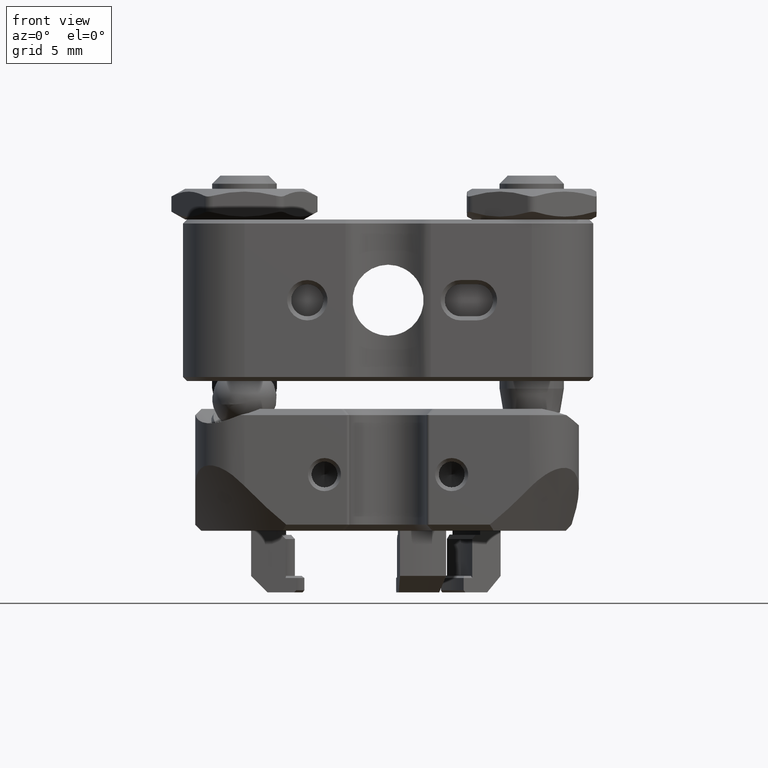
[diagram: clean part render]
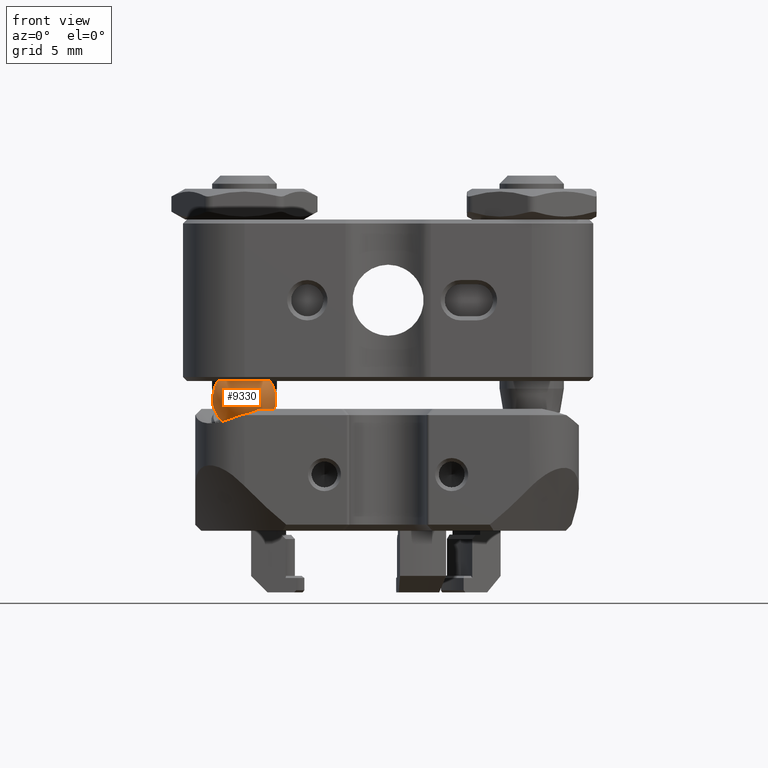
[diagram: same view with one face highlighted and labeled with its STEP entity id]
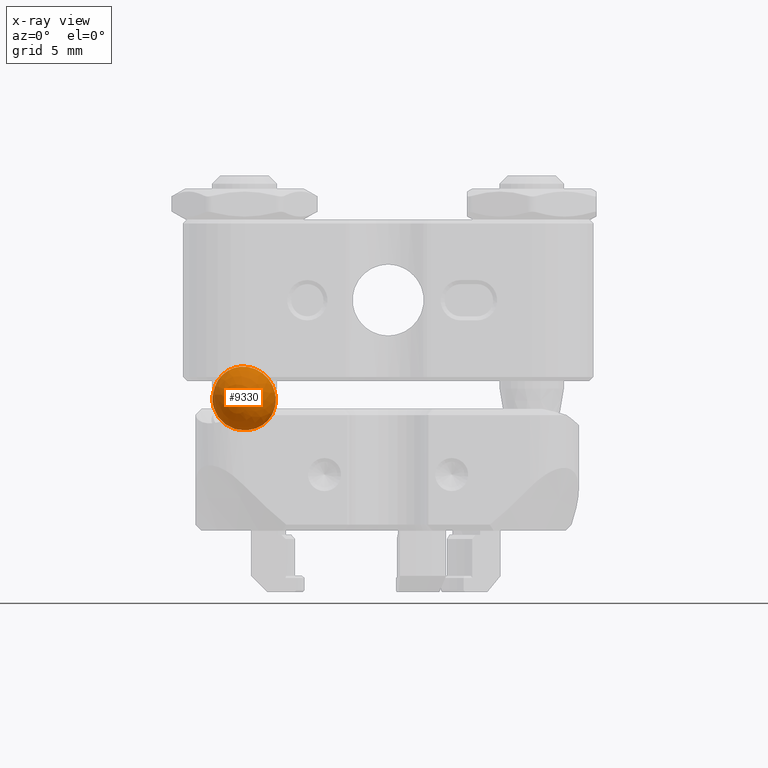
[diagram: x-ray of the same camera — body ghosted, the highlighted face saturated]
A machine part, front view. The second image highlights one B-rep face of the part: STEP entity #9330.
The next image is the same camera in x-ray: the body ghosted, the highlighted face saturated — about 0% of this face is hidden behind the body in this view.
In plain terms, the highlighted spherical surface has radius 2 mm.
Its self-contained STEP definition (entity closure, byte-faithful):
#242 = CARTESIAN_POINT ( 'NONE',  ( 1.224646799147353207E-16, -2.000000000000000000, 0.000000000000000000 ) ) ;
#688 = EDGE_LOOP ( 'NONE', ( #2756, #14343 ) ) ;
#2175 = FACE_OUTER_BOUND ( 'NONE', #688, .T. ) ;
#2434 = AXIS2_PLACEMENT_3D ( 'NONE', #3050, #13164, #5557 ) ;
#2436 = DIRECTION ( 'NONE',  ( 1.224646799147353207E-16, 0.000000000000000000, -1.000000000000000000 ) ) ;
#2756 = ORIENTED_EDGE ( 'NONE', *, *, #15606, .F. ) ;
#3050 = CARTESIAN_POINT ( 'NONE',  ( 0.000000000000000000, 0.000000000000000000, 0.000000000000000000 ) ) ;
#3137 = SPHERICAL_SURFACE ( 'NONE', #2434, 2.000000000000000000 ) ;
#3162 = DIRECTION ( 'NONE',  ( 1.000000000000000000, 0.000000000000000000, 0.000000000000000000 ) ) ;
#4591 = CARTESIAN_POINT ( 'NONE',  ( 0.000000000000000000, 0.000000000000000000, 0.000000000000000000 ) ) ;
#5538 = AXIS2_PLACEMENT_3D ( 'NONE', #4591, #14393, #3162 ) ;
#5557 = DIRECTION ( 'NONE',  ( 1.000000000000000000, 0.000000000000000000, 0.000000000000000000 ) ) ;
#6679 = AXIS2_PLACEMENT_3D ( 'NONE', #8748, #2436, #9971 ) ;
#8748 = CARTESIAN_POINT ( 'NONE',  ( 0.000000000000000000, 0.000000000000000000, 0.000000000000000000 ) ) ;
#9330 = ADVANCED_FACE ( 'NONE', ( #2175 ), #3137, .T. ) ;
#9971 = DIRECTION ( 'NONE',  ( -1.000000000000000000, 0.000000000000000000, -1.224646799147353207E-16 ) ) ;
#10405 = CIRCLE ( 'NONE', #5538, 2.000000000000000000 ) ;
#10764 = VERTEX_POINT ( 'NONE', #10866 ) ;
#10866 = CARTESIAN_POINT ( 'NONE',  ( 1.224646799147353207E-16, 2.000000000000000000, 0.000000000000000000 ) ) ;
#11817 = VERTEX_POINT ( 'NONE', #242 ) ;
#11830 = CIRCLE ( 'NONE', #6679, 2.000000000000000000 ) ;
#13006 = EDGE_CURVE ( 'NONE', #11817, #10764, #11830, .T. ) ;
#13164 = DIRECTION ( 'NONE',  ( 0.000000000000000000, 0.000000000000000000, -1.000000000000000000 ) ) ;
#14343 = ORIENTED_EDGE ( 'NONE', *, *, #13006, .T. ) ;
#14393 = DIRECTION ( 'NONE',  ( 0.000000000000000000, 0.000000000000000000, 1.000000000000000000 ) ) ;
#15606 = EDGE_CURVE ( 'NONE', #11817, #10764, #10405, .T. ) ;